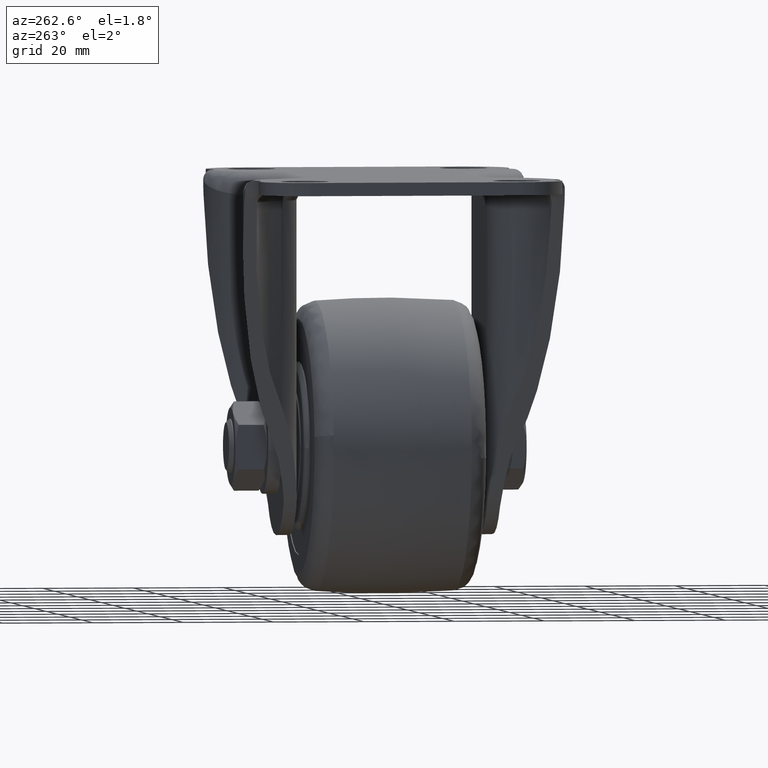
[diagram: clean part render]
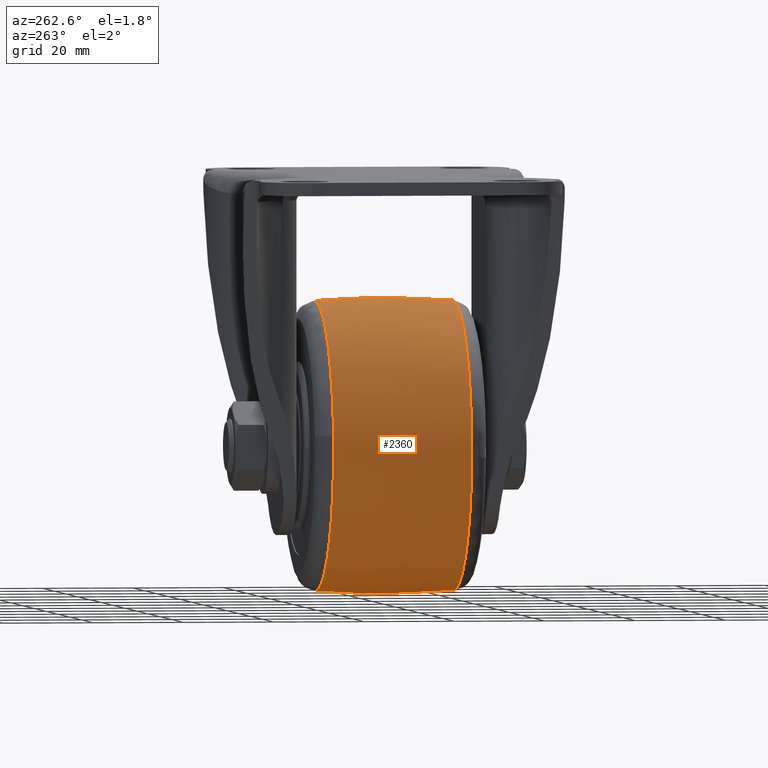
[diagram: same view with one face highlighted and labeled with its STEP entity id]
A machine part, auxiliary view. The second image highlights one B-rep face of the part: STEP entity #2360.
In plain terms, the highlighted face is a freeform B-spline surface patch.
Its self-contained STEP definition (entity closure, byte-faithful):
#2072=CARTESIAN_POINT('',(-31.752315801321888,15.306127020083430,-56.297111807566822));
#2073=VERTEX_POINT('',#2072);
#2087=CARTESIAN_POINT('',(0.0,15.306127033187870,-27.586553925660269));
#2088=VERTEX_POINT('',#2087);
#2089=CARTESIAN_POINT('',(0.0,15.306127033187870,-27.586553925660269));
#2090=CARTESIAN_POINT('',(-28.856252829083008,15.306127026624523,-27.586553934349315));
#2091=CARTESIAN_POINT('',(-31.752315801321885,15.306127020083430,-56.297111807566822));
#2099=(BOUNDED_CURVE()B_SPLINE_CURVE(2,(#2089,#2090,#2091),.UNSPECIFIED.,.F.,.U.)B_SPLINE_CURVE_WITH_KNOTS((3,3),(0.500000000000000,0.732576558730528),.UNSPECIFIED.)CURVE()GEOMETRIC_REPRESENTATION_ITEM()RATIONAL_B_SPLINE_CURVE((1.0,0.727519612371439,0.962019631752566))REPRESENTATION_ITEM(''));
#2100=EDGE_CURVE('',#2088,#2073,#2099,.T.);
#2166=CARTESIAN_POINT('',(0.0,15.306127033237340,-91.413446074337315));
#2167=VERTEX_POINT('',#2166);
#2181=CARTESIAN_POINT('',(-31.752315801321885,15.306127020083430,-56.297111807566822));
#2182=CARTESIAN_POINT('',(-31.913446257842608,15.306127020383219,-57.894502848016522));
#2183=CARTESIAN_POINT('',(-31.913446262176141,15.306127020714660,-59.500000016544519));
#2184=CARTESIAN_POINT('',(-31.913446348316384,15.306127027302727,-91.413446082194000));
#2185=CARTESIAN_POINT('',(0.0,15.306127033237340,-91.413446074337315));
#2193=(BOUNDED_CURVE()B_SPLINE_CURVE(2,(#2181,#2182,#2183,#2184,#2185),.UNSPECIFIED.,.F.,.U.)B_SPLINE_CURVE_WITH_KNOTS((3,2,3),(0.732576558730528,0.750000000000000,1.0),.UNSPECIFIED.)CURVE()GEOMETRIC_REPRESENTATION_ITEM()RATIONAL_B_SPLINE_CURVE((0.962019631752566,0.979587168815109,1.0,0.707106781186548,1.0))REPRESENTATION_ITEM(''));
#2194=EDGE_CURVE('',#2073,#2167,#2193,.T.);
#2230=CARTESIAN_POINT('',(0.0,-15.306124971610689,-91.413446232579020));
#2231=VERTEX_POINT('',#2230);
#2232=CARTESIAN_POINT('',(0.0,-15.306124971610691,-91.413446232579105));
#2233=CARTESIAN_POINT('',(0.0,0.000001036886304,-92.588279133486054));
#2234=CARTESIAN_POINT('',(0.0,15.306127033237340,-91.413446074337415));
#2242=(BOUNDED_CURVE()B_SPLINE_CURVE(2,(#2232,#2233,#2234),.UNSPECIFIED.,.F.,.U.)B_SPLINE_CURVE_WITH_KNOTS((3,3),(0.435568303106248,0.564431705597773),.UNSPECIFIED.)CURVE()GEOMETRIC_REPRESENTATION_ITEM()RATIONAL_B_SPLINE_CURVE((0.920099219158498,0.917400780659238,0.920099219523028))REPRESENTATION_ITEM(''));
#2243=EDGE_CURVE('',#2231,#2167,#2242,.T.);
#2247=CARTESIAN_POINT('',(0.0,-15.306123710281490,-27.586553670608140));
#2248=VERTEX_POINT('',#2247);
#2249=CARTESIAN_POINT('',(0.0,-15.306123710281494,-27.586553670608062));
#2250=CARTESIAN_POINT('',(0.0,0.000001671241548,-26.411720915209560));
#2251=CARTESIAN_POINT('',(0.0,15.306127033187884,-27.586553925660183));
#2259=(BOUNDED_CURVE()B_SPLINE_CURVE(2,(#2249,#2250,#2251),.UNSPECIFIED.,.F.,.U.)B_SPLINE_CURVE_WITH_KNOTS((3,3),(0.435568308431477,0.564431705597564),.UNSPECIFIED.)CURVE()GEOMETRIC_REPRESENTATION_ITEM()RATIONAL_B_SPLINE_CURVE((0.920099218935474,0.917400780770754,0.920099219523019))REPRESENTATION_ITEM(''));
#2260=EDGE_CURVE('',#2248,#2088,#2259,.T.);
#2295=CARTESIAN_POINT('',(0.888761945045057,-16.830030047709084,-27.709382838546734));
#2296=CARTESIAN_POINT('',(0.928496606205693,0.000003551365420,-26.288091785255936));
#2297=CARTESIAN_POINT('',(0.888761928394695,16.830037100143699,-27.709383434122753));
#2298=CARTESIAN_POINT('',(0.446968936051596,-16.830030047709080,-27.709382838546741));
#2299=CARTESIAN_POINT('',(0.466951968991243,0.000003551365419,-26.288091785255929));
#2300=CARTESIAN_POINT('',(0.446968927677931,16.830037100143691,-27.709383434122749));
#2301=CARTESIAN_POINT('',(-31.790617161453962,-16.830030047709084,-27.709382838546745));
#2302=CARTESIAN_POINT('',(-33.211908214744753,0.000003551365411,-26.288091785255943));
#2303=CARTESIAN_POINT('',(-31.790616565877940,16.830037100143684,-27.709383434122767));
#2304=CARTESIAN_POINT('',(-31.790617161453966,-16.830030047709080,-59.500000000000696));
#2305=CARTESIAN_POINT('',(-33.211908214744760,0.000003551365419,-59.500000000000682));
#2306=CARTESIAN_POINT('',(-31.790616565877951,16.830037100143695,-59.500000000000696));
#2307=CARTESIAN_POINT('',(-31.790617161453948,-16.830030047709084,-91.290617161454662));
#2308=CARTESIAN_POINT('',(-33.211908214744753,0.000003551365411,-92.711908214745463));
#2309=CARTESIAN_POINT('',(-31.790616565877926,16.830037100143684,-91.290616565878651));
#2310=CARTESIAN_POINT('',(0.446968936051595,-16.830030047709080,-91.290617161454648));
#2311=CARTESIAN_POINT('',(0.466951968991242,0.000003551365419,-92.711908214745449));
#2312=CARTESIAN_POINT('',(0.446968927677930,16.830037100143691,-91.290616565878636));
#2313=CARTESIAN_POINT('',(0.888761945045055,-16.830030047709084,-91.290617161454662));
#2314=CARTESIAN_POINT('',(0.928496606205690,0.000003551365420,-92.711908214745463));
#2315=CARTESIAN_POINT('',(0.888761928394692,16.830037100143699,-91.290616565878651));
#2323=(BOUNDED_SURFACE()B_SPLINE_SURFACE(2,2,((#2295,#2298,#2301,#2304,#2307,#2310,#2313),(#2296,#2299,#2302,#2305,#2308,#2311,#2314),(#2297,#2300,#2303,#2306,#2309,#2312,#2315)),.UNSPECIFIED.,.F.,.F.,.U.)B_SPLINE_SURFACE_WITH_KNOTS((3,3),(3,1,2,1,3),(0.0,33.719867911993227),(0.0,1.076955262170049,54.924718370672352,108.772481479174700,109.849436741344700),.UNSPECIFIED.)GEOMETRIC_REPRESENTATION_ITEM()RATIONAL_B_SPLINE_SURFACE(((0.931165207336233,0.925773732891923,0.650808536232096,0.920382258447612,0.650808536232096,0.925773732891923,0.931165207336233),(0.927862443552100,0.922490092209037,0.648500173712817,0.917117740865973,0.648500173712817,0.922490092209037,0.927862443552100),(0.931165208725146,0.925773734272793,0.650808537202833,0.920382259820441,0.650808537202833,0.925773734272793,0.931165208725146)))REPRESENTATION_ITEM('')SURFACE());
#2324=ORIENTED_EDGE('',*,*,#2243,.F.);
#2325=CARTESIAN_POINT('',(-31.850472454226800,-15.306124375366441,-61.503861876332309));
#2326=VERTEX_POINT('',#2325);
#2327=CARTESIAN_POINT('',(-31.850472454226800,-15.306124375366446,-61.503861876332302));
#2328=CARTESIAN_POINT('',(-29.968720880349736,-15.306124969020992,-91.413446230320901));
#2329=CARTESIAN_POINT('',(0.0,-15.306124971610689,-91.413446232579020));
#2337=(BOUNDED_CURVE()B_SPLINE_CURVE(2,(#2327,#2328,#2329),.UNSPECIFIED.,.F.,.U.)B_SPLINE_CURVE_WITH_KNOTS((3,3),(0.760968089569853,1.0),.UNSPECIFIED.)CURVE()GEOMETRIC_REPRESENTATION_ITEM()RATIONAL_B_SPLINE_CURVE((0.975427679790917,0.719956697419941,1.0))REPRESENTATION_ITEM(''));
#2338=EDGE_CURVE('',#2326,#2231,#2337,.T.);
#2339=ORIENTED_EDGE('',*,*,#2338,.F.);
#2340=CARTESIAN_POINT('',(0.0,-15.306123710281490,-27.586553670608140));
#2341=CARTESIAN_POINT('',(-31.913446392499811,-15.306123707849594,-27.586553668487610));
#2342=CARTESIAN_POINT('',(-31.913446356607761,-15.306124335924491,-59.499999947214917));
#2343=CARTESIAN_POINT('',(-31.913446355479810,-15.306124355662545,-60.502920429065938));
#2344=CARTESIAN_POINT('',(-31.850472454226800,-15.306124375366446,-61.503861876332302));
#2352=(BOUNDED_CURVE()B_SPLINE_CURVE(2,(#2340,#2341,#2342,#2343,#2344),.UNSPECIFIED.,.F.,.U.)B_SPLINE_CURVE_WITH_KNOTS((3,2,3),(0.500000000000000,0.750000000000000,0.760968089569853),.UNSPECIFIED.)CURVE()GEOMETRIC_REPRESENTATION_ITEM()RATIONAL_B_SPLINE_CURVE((1.0,0.707106781186548,1.0,0.987150083766607,0.975427679790917))REPRESENTATION_ITEM(''));
#2353=EDGE_CURVE('',#2248,#2326,#2352,.T.);
#2354=ORIENTED_EDGE('',*,*,#2353,.F.);
#2355=ORIENTED_EDGE('',*,*,#2260,.T.);
#2356=ORIENTED_EDGE('',*,*,#2100,.T.);
#2357=ORIENTED_EDGE('',*,*,#2194,.T.);
#2358=EDGE_LOOP('',(#2324,#2339,#2354,#2355,#2356,#2357));
#2359=FACE_OUTER_BOUND('',#2358,.T.);
#2360=ADVANCED_FACE('',(#2359),#2323,.T.);